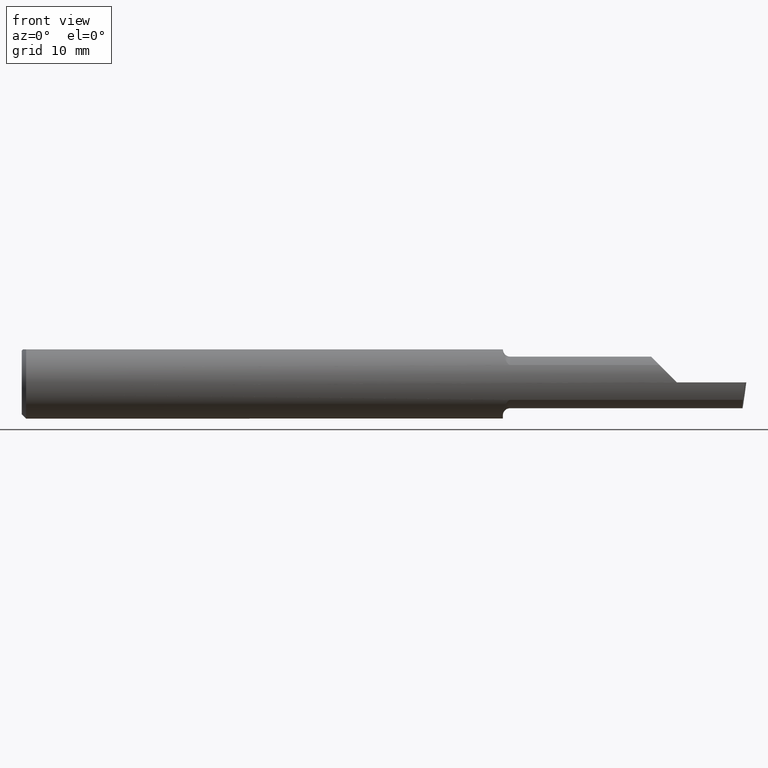
[diagram: clean part render]
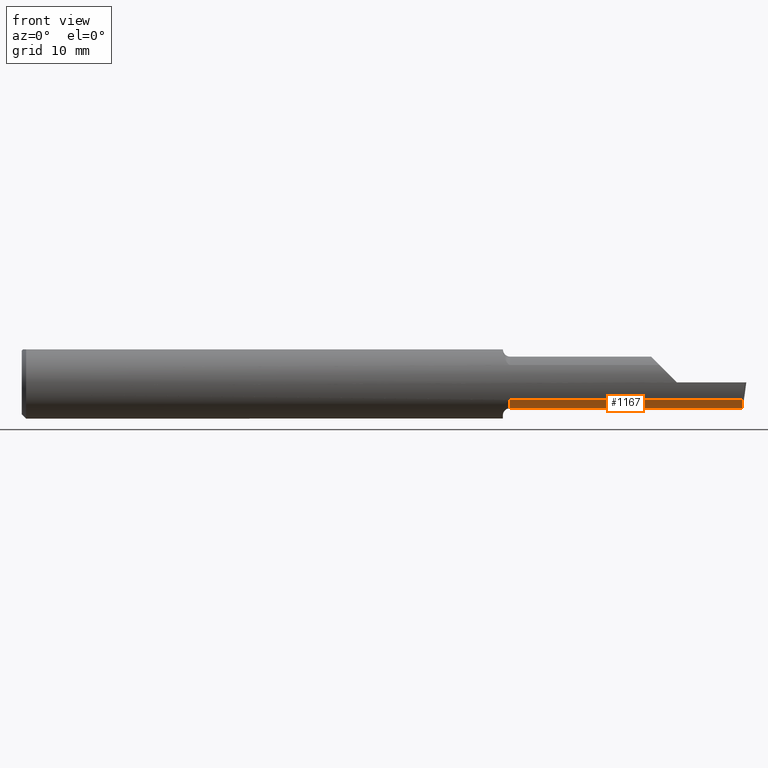
[diagram: same view with one face highlighted and labeled with its STEP entity id]
A machine part, front view. The second image highlights one B-rep face of the part: STEP entity #1167.
In plain terms, the highlighted cylindrical surface (edge-blend (fillet) strip) has radius 2.2606 mm, axis along (-1, -0, -0).
Its self-contained STEP definition (entity closure, byte-faithful):
#41 = DIRECTION ( 'NONE',  ( -1.000000000000000000, -0.000000000000000000, -0.000000000000000000 ) ) ;
#67 = VERTEX_POINT ( 'NONE', #152 ) ;
#82 = CARTESIAN_POINT ( 'NONE',  ( 1.660000000000000364, -0.04384999999999998621, -0.08899999999999999578 ) ) ;
#152 = CARTESIAN_POINT ( 'NONE',  ( 1.685000000000000275, -0.1093425883694413014, -0.06026376082415467461 ) ) ;
#166 = ORIENTED_EDGE ( 'NONE', *, *, #893, .F. ) ;
#224 = DIRECTION ( 'NONE',  ( 1.000000000000000000, 0.000000000000000000, 0.000000000000000000 ) ) ;
#374 = DIRECTION ( 'NONE',  ( -1.000000000000000000, -0.000000000000000000, -0.000000000000000000 ) ) ;
#376 = CARTESIAN_POINT ( 'NONE',  ( 2.487785916505024453, -0.1093425883694412876, -0.06026376082415470931 ) ) ;
#416 = LINE ( 'NONE', #812, #1064 ) ;
#461 = LINE ( 'NONE', #82, #1152 ) ;
#463 = CARTESIAN_POINT ( 'NONE',  ( 2.487785916505024453, -0.1093425883694412876, -0.06026376082415470931 ) ) ;
#466 = LINE ( 'NONE', #478, #625 ) ;
#478 = CARTESIAN_POINT ( 'NONE',  ( 1.975000000000000089, -0.1093425883694413014, -0.06026376082415467461 ) ) ;
#487 = VERTEX_POINT ( 'NONE', #1227 ) ;
#510 = EDGE_CURVE ( 'NONE', #67, #710, #958, .T. ) ;
#518 = CARTESIAN_POINT ( 'NONE',  ( 1.685000000000000275, -0.04385000000000000009, 0.000000000000000000 ) ) ;
#549 = EDGE_CURVE ( 'NONE', #638, #487, #792, .T. ) ;
#580 = CARTESIAN_POINT ( 'NONE',  ( 2.290000000000000036, -0.04384999999999997927, -0.08899999999999999578 ) ) ;
#620 = DIRECTION ( 'NONE',  ( 0.000000000000000000, 0.000000000000000000, -1.000000000000000000 ) ) ;
#625 = VECTOR ( 'NONE', #374, 39.37007874015748143 ) ;
#638 = VERTEX_POINT ( 'NONE', #463 ) ;
#651 = DIRECTION ( 'NONE',  ( -1.000000000000000000, -0.000000000000000000, -0.000000000000000000 ) ) ;
#710 = VERTEX_POINT ( 'NONE', #912 ) ;
#726 = ORIENTED_EDGE ( 'NONE', *, *, #1068, .F. ) ;
#770 = CARTESIAN_POINT ( 'NONE',  ( 2.485319017819460186, -0.06910891545235432754, -0.08900000000000002354 ) ) ;
#792 =( BOUNDED_CURVE ( )  B_SPLINE_CURVE ( 3, ( #376, #1052, #770, #1174 ),
 .UNSPECIFIED., .F., .T. ) 
 B_SPLINE_CURVE_WITH_KNOTS ( ( 4, 4 ),
 ( 5.667882814633647293, 6.494836076230707356 ),
 .UNSPECIFIED. ) 
 CURVE ( )  GEOMETRIC_REPRESENTATION_ITEM ( )  RATIONAL_B_SPLINE_CURVE ( ( 1.000000000000000000, 0.9438196436970136549, 0.9438196436970136549, 1.000000000000000000 ) ) 
 REPRESENTATION_ITEM ( '' )  );
#796 = ORIENTED_EDGE ( 'NONE', *, *, #510, .T. ) ;
#808 = DIRECTION ( 'NONE',  ( -1.000000000000000000, -0.000000000000000000, -0.000000000000000000 ) ) ;
#812 = CARTESIAN_POINT ( 'NONE',  ( 2.500000000000001776, -0.04384999999999997927, -0.08899999999999999578 ) ) ;
#813 = EDGE_LOOP ( 'NONE', ( #166, #726, #1205, #835, #796 ) ) ;
#835 = ORIENTED_EDGE ( 'NONE', *, *, #944, .T. ) ;
#893 = EDGE_CURVE ( 'NONE', #1048, #710, #461, .T. ) ;
#912 = CARTESIAN_POINT ( 'NONE',  ( 1.685000000000000275, -0.04384999999999998621, -0.08899999999999999578 ) ) ;
#937 = DIRECTION ( 'NONE',  ( 0.000000000000000000, 0.000000000000000000, 1.000000000000000000 ) ) ;
#944 = EDGE_CURVE ( 'NONE', #638, #67, #466, .T. ) ;
#958 = CIRCLE ( 'NONE', #1042, 0.08899999999999999578 ) ;
#984 = AXIS2_PLACEMENT_3D ( 'NONE', #1286, #41, #937 ) ;
#1042 = AXIS2_PLACEMENT_3D ( 'NONE', #518, #224, #620 ) ;
#1048 = VERTEX_POINT ( 'NONE', #580 ) ;
#1052 = CARTESIAN_POINT ( 'NONE',  ( 2.485954910319315925, -0.09223924859979829027, -0.07885108388459925732 ) ) ;
#1064 = VECTOR ( 'NONE', #808, 39.37007874015748143 ) ;
#1068 = EDGE_CURVE ( 'NONE', #487, #1048, #416, .T. ) ;
#1148 = FACE_OUTER_BOUND ( 'NONE', #813, .T. ) ;
#1152 = VECTOR ( 'NONE', #651, 39.37007874015748143 ) ;
#1167 = ADVANCED_FACE ( 'NONE', ( #1148 ), #1259, .T. ) ;
#1174 = CARTESIAN_POINT ( 'NONE',  ( 2.485985413007094191, -0.04384999999999997927, -0.08899999999999999578 ) ) ;
#1205 = ORIENTED_EDGE ( 'NONE', *, *, #549, .F. ) ;
#1227 = CARTESIAN_POINT ( 'NONE',  ( 2.485985413007094191, -0.04384999999999997927, -0.08899999999999999578 ) ) ;
#1259 = CYLINDRICAL_SURFACE ( 'NONE', #984, 0.08899999999999999578 ) ;
#1286 = CARTESIAN_POINT ( 'NONE',  ( 1.660000000000000364, -0.04385000000000000009, 0.000000000000000000 ) ) ;